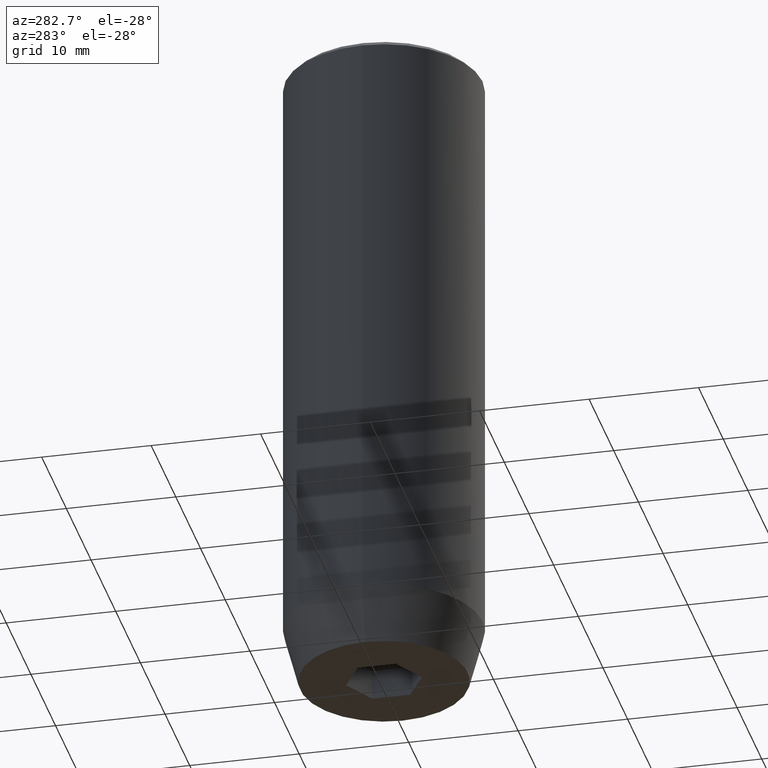
[diagram: clean part render]
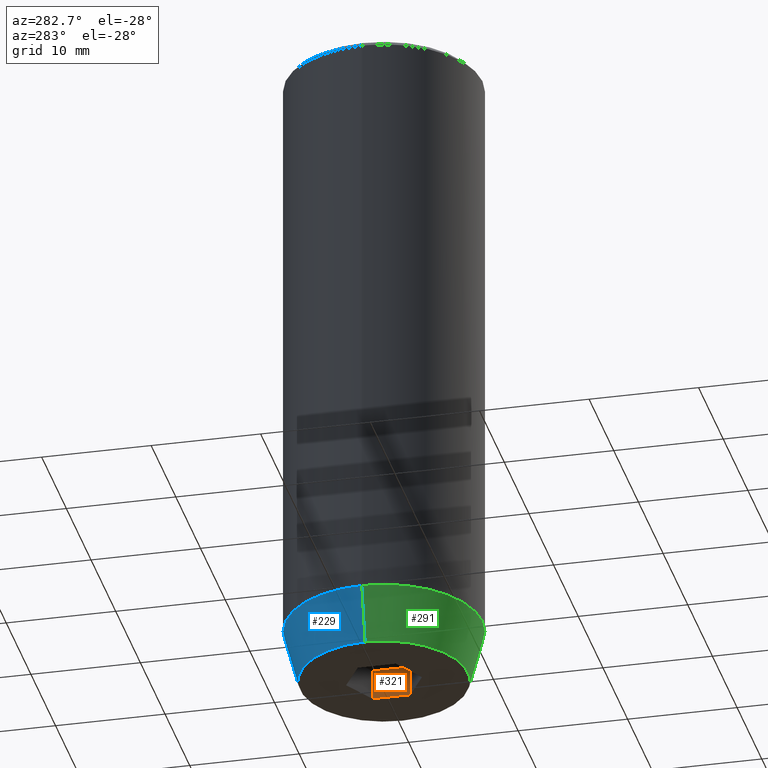
[diagram: same view with three faces highlighted in distinct colors, each labeled with its STEP entity id]
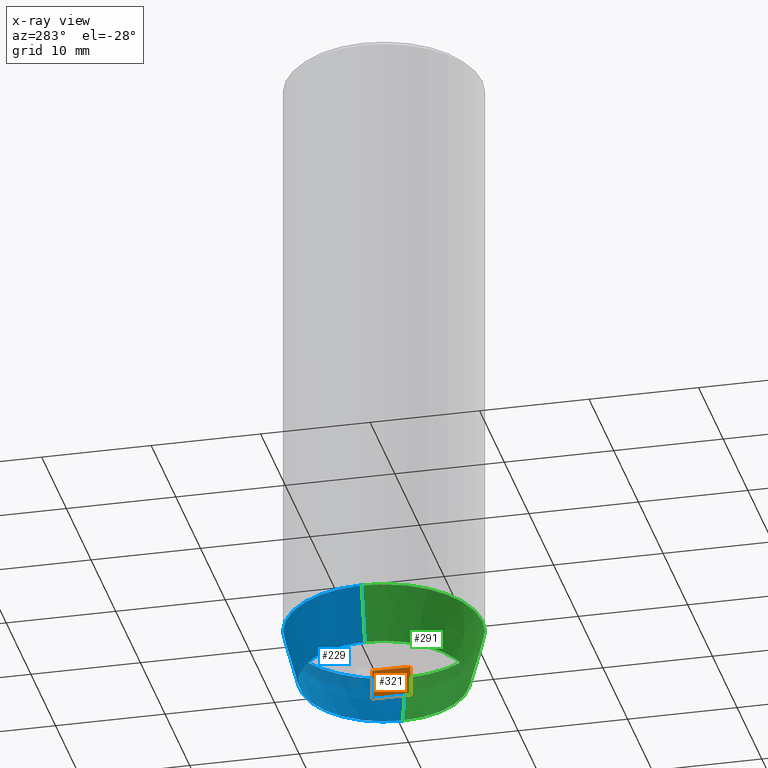
[diagram: x-ray of the same camera — body ghosted, the three highlighted faces saturated]
A machine part, auxiliary view with three faces highlighted in distinct colors.
The next image is the same camera in x-ray (body ghosted, the three faces saturated) — at least one of them is partly hidden behind the body in this view.
Their STEP definitions:

[orange] entity #321 — the highlighted planar face has unit normal (1, 0, -0).
#34 = FACE_OUTER_BOUND ( 'NONE', #160, .T. ) ;
#58 = VECTOR ( 'NONE', #453, 1000.000000000000000 ) ;
#88 = CARTESIAN_POINT ( 'NONE',  ( 3.000000000000000000, 0.000000000000000000, -57.20000000000000284 ) ) ;
#108 = ORIENTED_EDGE ( 'NONE', *, *, #260, .F. ) ;
#111 = VERTEX_POINT ( 'NONE', #263 ) ;
#114 = LINE ( 'NONE', #119, #452 ) ;
#119 = CARTESIAN_POINT ( 'NONE',  ( 3.000000000000000000, 1.732050807568876527, -57.20000000000000284 ) ) ;
#137 = LINE ( 'NONE', #313, #248 ) ;
#160 = EDGE_LOOP ( 'NONE', ( #181, #108, #522, #384 ) ) ;
#163 = AXIS2_PLACEMENT_3D ( 'NONE', #433, #556, #204 ) ;
#181 = ORIENTED_EDGE ( 'NONE', *, *, #388, .T. ) ;
#183 = DIRECTION ( 'NONE',  ( 0.000000000000000000, -1.000000000000000000, 0.000000000000000000 ) ) ;
#202 = VERTEX_POINT ( 'NONE', #441 ) ;
#204 = DIRECTION ( 'NONE',  ( -0.000000000000000000, 0.000000000000000000, -1.000000000000000000 ) ) ;
#245 = DIRECTION ( 'NONE',  ( -0.000000000000000000, -0.000000000000000000, -1.000000000000000000 ) ) ;
#248 = VECTOR ( 'NONE', #183, 1000.000000000000000 ) ;
#259 = CARTESIAN_POINT ( 'NONE',  ( 3.000000000000000000, -1.732050807568876527, -57.20000000000000284 ) ) ;
#260 = EDGE_CURVE ( 'NONE', #202, #111, #532, .T. ) ;
#263 = CARTESIAN_POINT ( 'NONE',  ( 3.000000000000000000, -1.732050807568876527, -60.00000000000000000 ) ) ;
#313 = CARTESIAN_POINT ( 'NONE',  ( 3.000000000000000000, 0.000000000000000000, -60.00000000000000000 ) ) ;
#321 = ADVANCED_FACE ( 'NONE', ( #34 ), #515, .F. ) ;
#340 = CARTESIAN_POINT ( 'NONE',  ( 3.000000000000000000, 1.732050807568876527, -60.00000000000000000 ) ) ;
#384 = ORIENTED_EDGE ( 'NONE', *, *, #550, .T. ) ;
#388 = EDGE_CURVE ( 'NONE', #539, #111, #137, .T. ) ;
#395 = EDGE_CURVE ( 'NONE', #403, #202, #549, .T. ) ;
#403 = VERTEX_POINT ( 'NONE', #541 ) ;
#433 = CARTESIAN_POINT ( 'NONE',  ( 3.000000000000000000, 0.000000000000000000, -57.20000000000000284 ) ) ;
#441 = CARTESIAN_POINT ( 'NONE',  ( 3.000000000000000000, -1.732050807568876527, -57.20000000000000284 ) ) ;
#442 = VECTOR ( 'NONE', #448, 1000.000000000000000 ) ;
#448 = DIRECTION ( 'NONE',  ( -0.000000000000000000, -0.000000000000000000, -1.000000000000000000 ) ) ;
#452 = VECTOR ( 'NONE', #245, 1000.000000000000000 ) ;
#453 = DIRECTION ( 'NONE',  ( 0.000000000000000000, -1.000000000000000000, 0.000000000000000000 ) ) ;
#515 = PLANE ( 'NONE',  #163 ) ;
#522 = ORIENTED_EDGE ( 'NONE', *, *, #395, .F. ) ;
#532 = LINE ( 'NONE', #259, #442 ) ;
#539 = VERTEX_POINT ( 'NONE', #340 ) ;
#541 = CARTESIAN_POINT ( 'NONE',  ( 3.000000000000000000, 1.732050807568876527, -57.20000000000000284 ) ) ;
#549 = LINE ( 'NONE', #88, #58 ) ;
#550 = EDGE_CURVE ( 'NONE', #403, #539, #114, .T. ) ;
#556 = DIRECTION ( 'NONE',  ( 1.000000000000000000, 0.000000000000000000, -0.000000000000000000 ) ) ;

[blue] entity #229 — the highlighted conical surface has half-angle 15 deg.
#30 = EDGE_CURVE ( 'NONE', #533, #506, #299, .T. ) ;
#36 = DIRECTION ( 'NONE',  ( 1.000000000000000000, 0.000000000000000000, 0.000000000000000000 ) ) ;
#43 = DIRECTION ( 'NONE',  ( -0.000000000000000000, -0.000000000000000000, 1.000000000000000000 ) ) ;
#59 = DIRECTION ( 'NONE',  ( -0.2588190451025211836, 3.169619151431770488E-17, 0.9659258262890680902 ) ) ;
#76 = CARTESIAN_POINT ( 'NONE',  ( 9.000000000000000000, 0.000000000000000000, -55.00000000000000000 ) ) ;
#93 = FACE_OUTER_BOUND ( 'NONE', #330, .T. ) ;
#97 = EDGE_CURVE ( 'NONE', #358, #123, #136, .T. ) ;
#120 = DIRECTION ( 'NONE',  ( 0.2588190451025211836, 0.000000000000000000, 0.9659258262890680902 ) ) ;
#123 = VERTEX_POINT ( 'NONE', #379 ) ;
#136 = LINE ( 'NONE', #312, #184 ) ;
#153 = CIRCLE ( 'NONE', #481, 7.660254037844383745 ) ;
#184 = VECTOR ( 'NONE', #59, 1000.000000000000114 ) ;
#229 = ADVANCED_FACE ( 'NONE', ( #93 ), #487, .T. ) ;
#257 = CARTESIAN_POINT ( 'NONE',  ( 0.000000000000000000, 0.000000000000000000, -55.00000000000000000 ) ) ;
#286 = ORIENTED_EDGE ( 'NONE', *, *, #30, .F. ) ;
#292 = CARTESIAN_POINT ( 'NONE',  ( 0.000000000000000000, 0.000000000000000000, -60.00000000000000000 ) ) ;
#299 = LINE ( 'NONE', #484, #520 ) ;
#312 = CARTESIAN_POINT ( 'NONE',  ( -9.000000000000000000, 1.102182119232617714E-15, -55.00000000000000000 ) ) ;
#319 = ORIENTED_EDGE ( 'NONE', *, *, #559, .T. ) ;
#325 = ORIENTED_EDGE ( 'NONE', *, *, #485, .F. ) ;
#330 = EDGE_LOOP ( 'NONE', ( #319, #503, #325, #286 ) ) ;
#339 = CARTESIAN_POINT ( 'NONE',  ( 0.000000000000000000, 0.000000000000000000, -55.00000000000000000 ) ) ;
#358 = VERTEX_POINT ( 'NONE', #415 ) ;
#378 = CARTESIAN_POINT ( 'NONE',  ( 7.660254037844383745, 0.000000000000000000, -60.00000000000000000 ) ) ;
#379 = CARTESIAN_POINT ( 'NONE',  ( -9.000000000000000000, 1.102182119232617714E-15, -55.00000000000000000 ) ) ;
#404 = AXIS2_PLACEMENT_3D ( 'NONE', #339, #477, #524 ) ;
#415 = CARTESIAN_POINT ( 'NONE',  ( -7.660254037844383745, 1.020146339021394469E-15, -60.00000000000000000 ) ) ;
#477 = DIRECTION ( 'NONE',  ( -0.000000000000000000, -0.000000000000000000, 1.000000000000000000 ) ) ;
#478 = DIRECTION ( 'NONE',  ( -0.000000000000000000, -0.000000000000000000, 1.000000000000000000 ) ) ;
#481 = AXIS2_PLACEMENT_3D ( 'NONE', #292, #478, #36 ) ;
#484 = CARTESIAN_POINT ( 'NONE',  ( 9.000000000000000000, 0.000000000000000000, -55.00000000000000000 ) ) ;
#485 = EDGE_CURVE ( 'NONE', #506, #123, #583, .T. ) ;
#487 = CONICAL_SURFACE ( 'NONE', #527, 9.000000000000000000, 0.2617993877991499074 ) ;
#492 = DIRECTION ( 'NONE',  ( 1.000000000000000000, 0.000000000000000000, 0.000000000000000000 ) ) ;
#503 = ORIENTED_EDGE ( 'NONE', *, *, #97, .T. ) ;
#506 = VERTEX_POINT ( 'NONE', #76 ) ;
#520 = VECTOR ( 'NONE', #120, 1000.000000000000114 ) ;
#524 = DIRECTION ( 'NONE',  ( 1.000000000000000000, 0.000000000000000000, 0.000000000000000000 ) ) ;
#527 = AXIS2_PLACEMENT_3D ( 'NONE', #257, #43, #492 ) ;
#533 = VERTEX_POINT ( 'NONE', #378 ) ;
#559 = EDGE_CURVE ( 'NONE', #533, #358, #153, .T. ) ;
#583 = CIRCLE ( 'NONE', #404, 9.000000000000000000 ) ;

[green] entity #291 — the highlighted conical surface has half-angle 15 deg.
#21 = CIRCLE ( 'NONE', #78, 7.660254037844383745 ) ;
#23 = CARTESIAN_POINT ( 'NONE',  ( 0.000000000000000000, 0.000000000000000000, -55.00000000000000000 ) ) ;
#30 = EDGE_CURVE ( 'NONE', #533, #506, #299, .T. ) ;
#39 = CIRCLE ( 'NONE', #563, 9.000000000000000000 ) ;
#51 = ORIENTED_EDGE ( 'NONE', *, *, #308, .T. ) ;
#59 = DIRECTION ( 'NONE',  ( -0.2588190451025211836, 3.169619151431770488E-17, 0.9659258262890680902 ) ) ;
#76 = CARTESIAN_POINT ( 'NONE',  ( 9.000000000000000000, 0.000000000000000000, -55.00000000000000000 ) ) ;
#78 = AXIS2_PLACEMENT_3D ( 'NONE', #518, #287, #523 ) ;
#97 = EDGE_CURVE ( 'NONE', #358, #123, #136, .T. ) ;
#120 = DIRECTION ( 'NONE',  ( 0.2588190451025211836, 0.000000000000000000, 0.9659258262890680902 ) ) ;
#123 = VERTEX_POINT ( 'NONE', #379 ) ;
#136 = LINE ( 'NONE', #312, #184 ) ;
#144 = EDGE_CURVE ( 'NONE', #123, #506, #39, .T. ) ;
#184 = VECTOR ( 'NONE', #59, 1000.000000000000114 ) ;
#196 = DIRECTION ( 'NONE',  ( -0.000000000000000000, -0.000000000000000000, 1.000000000000000000 ) ) ;
#235 = FACE_OUTER_BOUND ( 'NONE', #300, .T. ) ;
#241 = ORIENTED_EDGE ( 'NONE', *, *, #30, .T. ) ;
#265 = DIRECTION ( 'NONE',  ( -0.000000000000000000, -0.000000000000000000, 1.000000000000000000 ) ) ;
#287 = DIRECTION ( 'NONE',  ( -0.000000000000000000, -0.000000000000000000, 1.000000000000000000 ) ) ;
#291 = ADVANCED_FACE ( 'NONE', ( #235 ), #344, .T. ) ;
#299 = LINE ( 'NONE', #484, #520 ) ;
#300 = EDGE_LOOP ( 'NONE', ( #422, #51, #241, #314 ) ) ;
#308 = EDGE_CURVE ( 'NONE', #358, #533, #21, .T. ) ;
#312 = CARTESIAN_POINT ( 'NONE',  ( -9.000000000000000000, 1.102182119232617714E-15, -55.00000000000000000 ) ) ;
#314 = ORIENTED_EDGE ( 'NONE', *, *, #144, .F. ) ;
#334 = DIRECTION ( 'NONE',  ( 1.000000000000000000, 0.000000000000000000, 0.000000000000000000 ) ) ;
#344 = CONICAL_SURFACE ( 'NONE', #510, 9.000000000000000000, 0.2617993877991499074 ) ;
#358 = VERTEX_POINT ( 'NONE', #415 ) ;
#378 = CARTESIAN_POINT ( 'NONE',  ( 7.660254037844383745, 0.000000000000000000, -60.00000000000000000 ) ) ;
#379 = CARTESIAN_POINT ( 'NONE',  ( -9.000000000000000000, 1.102182119232617714E-15, -55.00000000000000000 ) ) ;
#386 = DIRECTION ( 'NONE',  ( 1.000000000000000000, 0.000000000000000000, 0.000000000000000000 ) ) ;
#415 = CARTESIAN_POINT ( 'NONE',  ( -7.660254037844383745, 1.020146339021394469E-15, -60.00000000000000000 ) ) ;
#422 = ORIENTED_EDGE ( 'NONE', *, *, #97, .F. ) ;
#484 = CARTESIAN_POINT ( 'NONE',  ( 9.000000000000000000, 0.000000000000000000, -55.00000000000000000 ) ) ;
#496 = CARTESIAN_POINT ( 'NONE',  ( 0.000000000000000000, 0.000000000000000000, -55.00000000000000000 ) ) ;
#506 = VERTEX_POINT ( 'NONE', #76 ) ;
#510 = AXIS2_PLACEMENT_3D ( 'NONE', #496, #265, #334 ) ;
#518 = CARTESIAN_POINT ( 'NONE',  ( 0.000000000000000000, 0.000000000000000000, -60.00000000000000000 ) ) ;
#520 = VECTOR ( 'NONE', #120, 1000.000000000000114 ) ;
#523 = DIRECTION ( 'NONE',  ( 1.000000000000000000, 0.000000000000000000, 0.000000000000000000 ) ) ;
#533 = VERTEX_POINT ( 'NONE', #378 ) ;
#563 = AXIS2_PLACEMENT_3D ( 'NONE', #23, #196, #386 ) ;